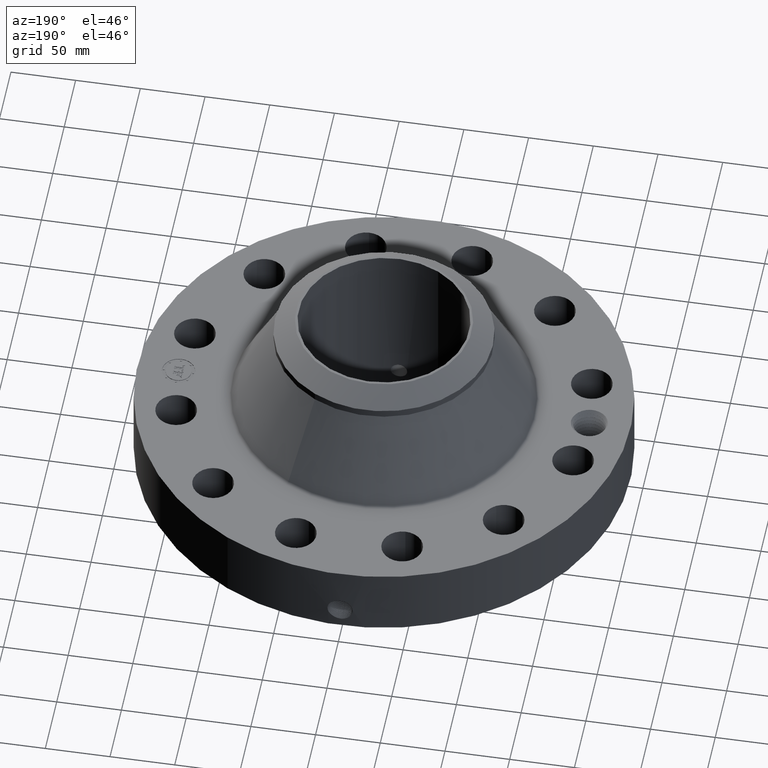
[diagram: clean part render]
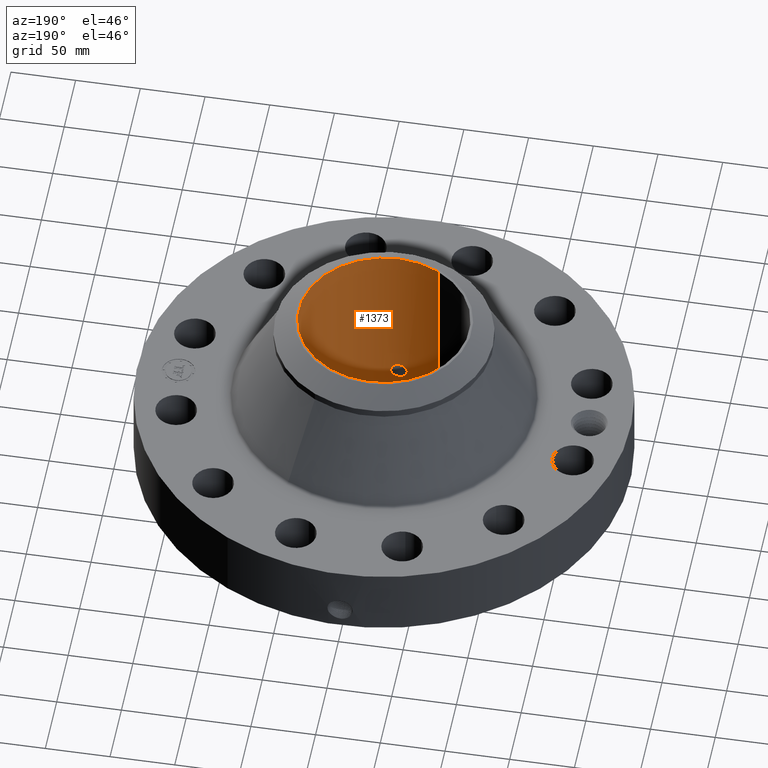
[diagram: same view with one face highlighted and labeled with its STEP entity id]
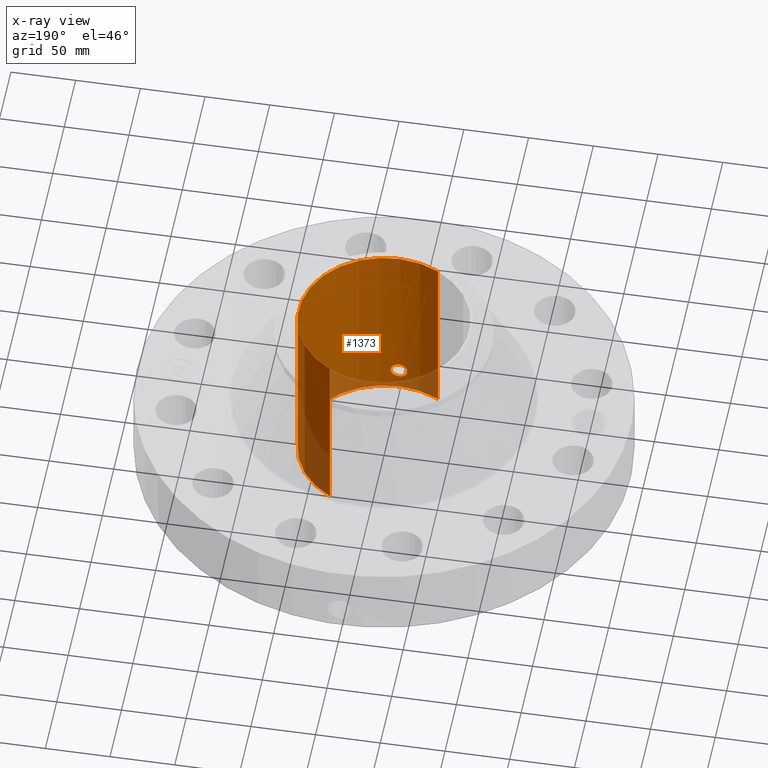
[diagram: x-ray of the same camera — body ghosted, the highlighted face saturated]
A machine part, auxiliary view. The second image highlights one B-rep face of the part: STEP entity #1373.
The next image is the same camera in x-ray: the body ghosted, the highlighted face saturated — about 15% of this face is hidden behind the body in this view.
In plain terms, the highlighted cylindrical surface (partial cylindrical patch) has radius 65.8749 mm, axis along (0, 0, -1).
Its self-contained STEP definition (entity closure, byte-faithful):
#250=AXIS2_PLACEMENT_3D('Circle Axis2P3D',#248,#249,$) ;
#1304=AXIS2_PLACEMENT_3D('Cylinder Axis2P3D',#1301,#1302,#1303) ;
#1308=AXIS2_PLACEMENT_3D('Circle Axis2P3D',#1306,#1307,$) ;
#248=CARTESIAN_POINT('Axis2P3D Location',(0.,0.,0.250000000001)) ;
#252=CARTESIAN_POINT('Vertex',(1.24339013437,2.27601037427,0.250000000001)) ;
#254=CARTESIAN_POINT('Vertex',(-1.24339013437,-2.27601037427,0.250000000001)) ;
#1301=CARTESIAN_POINT('Axis2P3D Location',(0.,0.,3.00000000001)) ;
#1306=CARTESIAN_POINT('Axis2P3D Location',(0.,0.,5.75000000002)) ;
#1310=CARTESIAN_POINT('Vertex',(1.24339013437,2.27601037427,5.75000000002)) ;
#1312=CARTESIAN_POINT('Vertex',(-1.24339013437,-2.27601037427,5.75000000002)) ;
#1315=CARTESIAN_POINT('Line Origine',(1.24339013437,2.27601037427,3.00000000001)) ;
#1320=CARTESIAN_POINT('Line Origine',(-1.24339013437,-2.27601037427,3.00000000001)) ;
#1332=CARTESIAN_POINT('Control Point',(0.219395640473,-2.58420351424,0.820143615352)) ;
#1333=CARTESIAN_POINT('Control Point',(0.20692256051,-2.5852624631,0.797311795626)) ;
#1334=CARTESIAN_POINT('Control Point',(0.191482880143,-2.586497476,0.776108824508)) ;
#1335=CARTESIAN_POINT('Control Point',(0.173357250086,-2.58781278867,0.757043287713)) ;
#1336=CARTESIAN_POINT('Control Point',(0.112221159456,-2.59161273053,0.70761051833)) ;
#1337=CARTESIAN_POINT('Control Point',(0.0351285576665,-2.59408147071,0.684061140208)) ;
#1338=CARTESIAN_POINT('Control Point',(-0.0194050762008,-2.59426940716,0.682387771789)) ;
#1339=CARTESIAN_POINT('Control Point',(-0.123944694244,-2.59156277618,0.707450436355)) ;
#1340=CARTESIAN_POINT('Control Point',(-0.202961756007,-2.58594113923,0.780181414331)) ;
#1341=CARTESIAN_POINT('Control Point',(-0.231987583435,-2.58316326105,0.826293069494)) ;
#1342=CARTESIAN_POINT('Control Point',(-0.255802596731,-2.58086220663,0.904489197623)) ;
#1343=CARTESIAN_POINT('Control Point',(-0.248349478137,-2.58158164367,0.983978880491)) ;
#1344=CARTESIAN_POINT('Control Point',(-0.242114108162,-2.58219290453,1.01064846966)) ;
#1345=CARTESIAN_POINT('Control Point',(-0.232356455499,-2.58310315728,1.03613177189)) ;
#1346=CARTESIAN_POINT('Control Point',(-0.219395640473,-2.58420351424,1.05985638466)) ;
#1347=CARTESIAN_POINT('Vertex',(0.219395640473,-2.58420351424,0.820143615352)) ;
#1349=CARTESIAN_POINT('Vertex',(-0.219395640473,-2.58420351424,1.05985638466)) ;
#1353=CARTESIAN_POINT('Control Point',(-0.219395640473,-2.58420351424,1.05985638466)) ;
#1354=CARTESIAN_POINT('Control Point',(-0.206922560506,-2.5852624631,1.08268820439)) ;
#1355=CARTESIAN_POINT('Control Point',(-0.191482880135,-2.586497476,1.10389117551)) ;
#1356=CARTESIAN_POINT('Control Point',(-0.173357250098,-2.58781278867,1.12295671228)) ;
#1357=CARTESIAN_POINT('Control Point',(-0.112221159466,-2.59161273053,1.17238948167)) ;
#1358=CARTESIAN_POINT('Control Point',(-0.0351285576701,-2.59408147071,1.1959388598)) ;
#1359=CARTESIAN_POINT('Control Point',(0.0194050762026,-2.59426940716,1.19761222822)) ;
#1360=CARTESIAN_POINT('Control Point',(0.123944694239,-2.59156277618,1.17254956365)) ;
#1361=CARTESIAN_POINT('Control Point',(0.202961756001,-2.58594113923,1.09981858568)) ;
#1362=CARTESIAN_POINT('Control Point',(0.231987583437,-2.58316326105,1.05370693051)) ;
#1363=CARTESIAN_POINT('Control Point',(0.255802596731,-2.58086220663,0.975510802382)) ;
#1364=CARTESIAN_POINT('Control Point',(0.248349478137,-2.58158164367,0.896021119518)) ;
#1365=CARTESIAN_POINT('Control Point',(0.242114108163,-2.58219290453,0.869351530352)) ;
#1366=CARTESIAN_POINT('Control Point',(0.232356455499,-2.58310315728,0.843868228119)) ;
#1367=CARTESIAN_POINT('Control Point',(0.219395640473,-2.58420351424,0.820143615352)) ;
#249=DIRECTION('Axis2P3D Direction',(0.,0.,-0.0393700787402)) ;
#1302=DIRECTION('Axis2P3D Direction',(0.,0.,-0.0393700787402)) ;
#1303=DIRECTION('Axis2P3D XDirection',(-0.0188750212049,-0.0345504945626,0.)) ;
#1307=DIRECTION('Axis2P3D Direction',(0.,0.,-0.0393700787402)) ;
#1316=DIRECTION('Vector Direction',(0.,0.,-0.0393700787402)) ;
#1321=DIRECTION('Vector Direction',(0.,0.,-0.0393700787402)) ;
#1317=VECTOR('Line Direction',#1316,0.0393700787402) ;
#1322=VECTOR('Line Direction',#1321,0.0393700787402) ;
#1326=ORIENTED_EDGE('',*,*,#1314,.F.) ;
#1327=ORIENTED_EDGE('',*,*,#1319,.T.) ;
#1328=ORIENTED_EDGE('',*,*,#256,.T.) ;
#1329=ORIENTED_EDGE('',*,*,#1324,.F.) ;
#1370=ORIENTED_EDGE('',*,*,#1351,.F.) ;
#1371=ORIENTED_EDGE('',*,*,#1368,.F.) ;
#1372=FACE_BOUND('',#1369,.T.) ;
#1373=ADVANCED_FACE('PartBody',(#1330,#1372),#1305,.F.) ;
#1331=B_SPLINE_CURVE_WITH_KNOTS('',5,(#1332,#1333,#1334,#1335,#1336,#1337,#1338,#1339,#1340,#1341,#1342,#1343,#1344,#1345,#1346),.UNSPECIFIED.,.F.,.U.,(6,3,3,3,6),(0.,4.67660523585,14.0190596723,23.3689195541,28.2283941652),.UNSPECIFIED.) ;
#1352=B_SPLINE_CURVE_WITH_KNOTS('',5,(#1353,#1354,#1355,#1356,#1357,#1358,#1359,#1360,#1361,#1362,#1363,#1364,#1365,#1366,#1367),.UNSPECIFIED.,.F.,.U.,(6,3,3,3,6),(0.,4.67660523717,14.0190596734,23.3689195545,28.2283941656),.UNSPECIFIED.) ;
#251=CIRCLE('generated circle',#250,2.59350000001) ;
#1309=CIRCLE('generated circle',#1308,2.59350000001) ;
#1305=CYLINDRICAL_SURFACE('generated cylinder',#1304,2.59350000001) ;
#256=EDGE_CURVE('',#253,#255,#251,.T.) ;
#1314=EDGE_CURVE('',#1311,#1313,#1309,.T.) ;
#1319=EDGE_CURVE('',#1311,#253,#1318,.T.) ;
#1324=EDGE_CURVE('',#1313,#255,#1323,.T.) ;
#1351=EDGE_CURVE('',#1348,#1350,#1331,.T.) ;
#1368=EDGE_CURVE('',#1350,#1348,#1352,.T.) ;
#1325=EDGE_LOOP('',(#1326,#1327,#1328,#1329)) ;
#1369=EDGE_LOOP('',(#1370,#1371)) ;
#1330=FACE_OUTER_BOUND('',#1325,.T.) ;
#1318=LINE('Line',#1315,#1317) ;
#1323=LINE('Line',#1320,#1322) ;
#253=VERTEX_POINT('',#252) ;
#255=VERTEX_POINT('',#254) ;
#1311=VERTEX_POINT('',#1310) ;
#1313=VERTEX_POINT('',#1312) ;
#1348=VERTEX_POINT('',#1347) ;
#1350=VERTEX_POINT('',#1349) ;